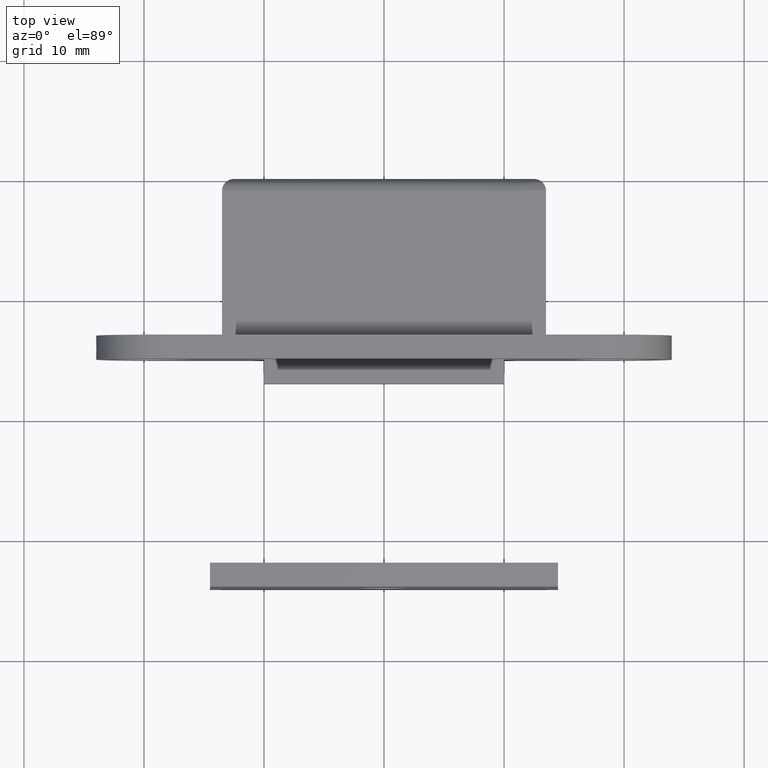
[diagram: clean part render]
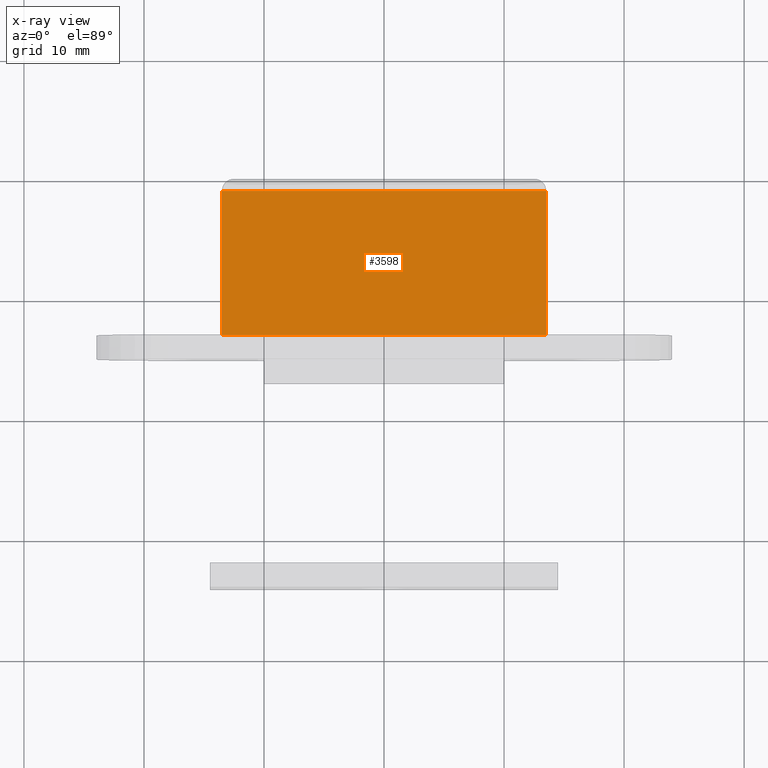
[diagram: x-ray — body ghosted, one internal face saturated and labeled with its STEP entity id]
A machine part, top view, then the same camera in x-ray: the body is ghosted and one INTERNAL B-rep face — a face not visible from any outside direction — is saturated and labeled: STEP entity #3598.
In plain terms, the highlighted face is a freeform B-spline surface patch.
Its self-contained STEP definition (entity closure, byte-faithful):
#3103=CARTESIAN_POINT('',(-13.500000000000000,-1.0,3.500000000000000));
#3104=VERTEX_POINT('',#3103);
#3110=CARTESIAN_POINT('',(-13.500000000000000,-13.0,3.500000000000000));
#3111=VERTEX_POINT('',#3110);
#3112=CARTESIAN_POINT('',(-13.500000000000000,-13.0,3.500000000000000));
#3113=CARTESIAN_POINT('',(-13.500000000000000,-1.0,3.500000000000000));
#3114=QUASI_UNIFORM_CURVE('',1,(#3112,#3113),.UNSPECIFIED.,.F.,.U.);
#3115=EDGE_CURVE('',#3111,#3104,#3114,.T.);
#3321=CARTESIAN_POINT('',(13.499995999999960,-1.0,3.500000000000000));
#3322=VERTEX_POINT('',#3321);
#3573=CARTESIAN_POINT('',(14.848645747868771,-13.599399976741671,3.500000000000000));
#3574=CARTESIAN_POINT('',(-14.848650472065090,-13.599399976741671,3.500000000000000));
#3575=CARTESIAN_POINT('',(14.848645747868771,-0.400599701393247,3.500000000000000));
#3576=CARTESIAN_POINT('',(-14.848650472065090,-0.400599701393247,3.500000000000000));
#3577=B_SPLINE_SURFACE_WITH_KNOTS('',1,1,((#3573,#3575),(#3574,#3576)),.UNSPECIFIED.,.F.,.F.,.U.,(2,2),(2,2),(0.0,29.697296219933872),(0.0,13.198800275348431),.UNSPECIFIED.);
#3578=CARTESIAN_POINT('',(13.499995999999999,-13.0,3.500000000000000));
#3579=VERTEX_POINT('',#3578);
#3580=CARTESIAN_POINT('',(13.499995999999999,-13.0,3.500000000000000));
#3581=CARTESIAN_POINT('',(-13.500000000000000,-13.0,3.500000000000000));
#3582=QUASI_UNIFORM_CURVE('',1,(#3580,#3581),.UNSPECIFIED.,.F.,.U.);
#3583=EDGE_CURVE('',#3579,#3111,#3582,.T.);
#3584=ORIENTED_EDGE('',*,*,#3583,.T.);
#3585=ORIENTED_EDGE('',*,*,#3115,.T.);
#3586=CARTESIAN_POINT('',(13.499995999999960,-1.0,3.500000000000000));
#3587=CARTESIAN_POINT('',(-13.500000000000000,-1.0,3.500000000000000));
#3588=QUASI_UNIFORM_CURVE('',1,(#3586,#3587),.UNSPECIFIED.,.F.,.U.);
#3589=EDGE_CURVE('',#3322,#3104,#3588,.T.);
#3590=ORIENTED_EDGE('',*,*,#3589,.F.);
#3591=CARTESIAN_POINT('',(13.499995999999999,-13.0,3.500000000000000));
#3592=CARTESIAN_POINT('',(13.499995999999960,-1.0,3.500000000000000));
#3593=QUASI_UNIFORM_CURVE('',1,(#3591,#3592),.UNSPECIFIED.,.F.,.U.);
#3594=EDGE_CURVE('',#3579,#3322,#3593,.T.);
#3595=ORIENTED_EDGE('',*,*,#3594,.F.);
#3596=EDGE_LOOP('',(#3584,#3585,#3590,#3595));
#3597=FACE_OUTER_BOUND('',#3596,.T.);
#3598=ADVANCED_FACE('',(#3597),#3577,.T.);